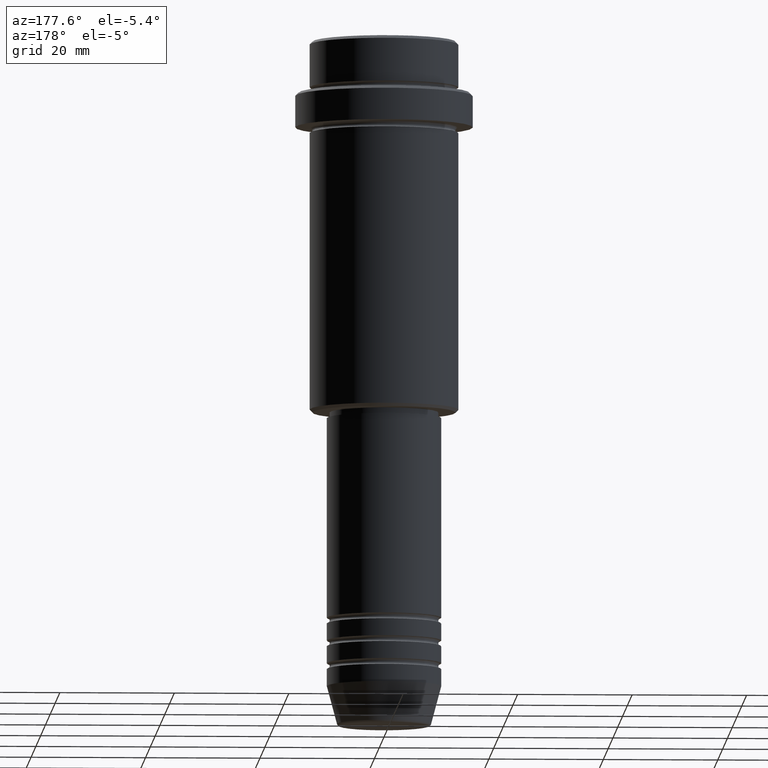
[diagram: clean part render]
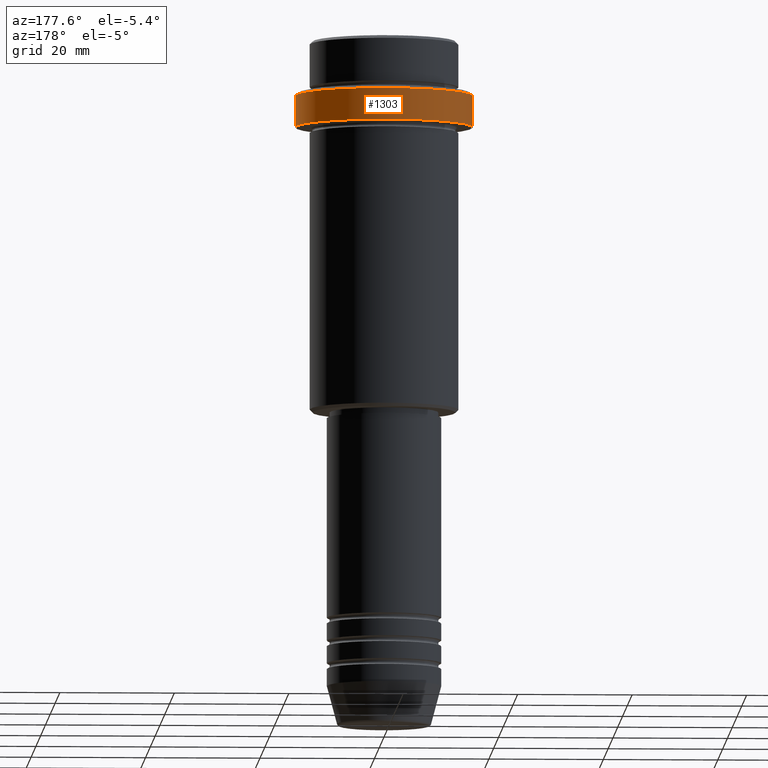
[diagram: same view with one face highlighted and labeled with its STEP entity id]
A machine part, auxiliary view. The second image highlights one B-rep face of the part: STEP entity #1303.
In plain terms, the highlighted cylindrical surface (partial cylindrical patch) has radius 15.5 mm, axis along (-0, -0, 1).
Its self-contained STEP definition (entity closure, byte-faithful):
#53 = EDGE_CURVE ( 'NONE', #793, #1355, #1281, .T. ) ;
#64 = VECTOR ( 'NONE', #1102, 1000.000000000000000 ) ;
#81 = VECTOR ( 'NONE', #292, 1000.000000000000000 ) ;
#220 = VERTEX_POINT ( 'NONE', #1080 ) ;
#224 = AXIS2_PLACEMENT_3D ( 'NONE', #280, #289, #600 ) ;
#233 = ORIENTED_EDGE ( 'NONE', *, *, #568, .T. ) ;
#261 = DIRECTION ( 'NONE',  ( 1.000000000000000000, 0.000000000000000000, 0.000000000000000000 ) ) ;
#280 = CARTESIAN_POINT ( 'NONE',  ( 0.000000000000000000, 0.000000000000000000, -9.499999999999998224 ) ) ;
#289 = DIRECTION ( 'NONE',  ( 0.000000000000000000, 0.000000000000000000, -1.000000000000000000 ) ) ;
#292 = DIRECTION ( 'NONE',  ( -0.000000000000000000, -0.000000000000000000, 1.000000000000000000 ) ) ;
#371 = DIRECTION ( 'NONE',  ( -0.000000000000000000, -0.000000000000000000, 1.000000000000000000 ) ) ;
#403 = CIRCLE ( 'NONE', #224, 15.50000000000000000 ) ;
#410 = VERTEX_POINT ( 'NONE', #562 ) ;
#476 = CYLINDRICAL_SURFACE ( 'NONE', #996, 15.50000000000000000 ) ;
#562 = CARTESIAN_POINT ( 'NONE',  ( 15.50000000000000000, 0.000000000000000000, -9.499999999999998224 ) ) ;
#568 = EDGE_CURVE ( 'NONE', #1355, #410, #403, .T. ) ;
#577 = CARTESIAN_POINT ( 'NONE',  ( -15.50000000000000000, 1.898202538678397557E-15, -15.00000000000000000 ) ) ;
#600 = DIRECTION ( 'NONE',  ( 1.000000000000000000, 0.000000000000000000, 0.000000000000000000 ) ) ;
#636 = AXIS2_PLACEMENT_3D ( 'NONE', #1036, #1027, #1260 ) ;
#736 = CARTESIAN_POINT ( 'NONE',  ( -15.50000000000000000, 1.898202538678397557E-15, 0.000000000000000000 ) ) ;
#777 = LINE ( 'NONE', #1323, #64 ) ;
#793 = VERTEX_POINT ( 'NONE', #577 ) ;
#831 = CARTESIAN_POINT ( 'NONE',  ( -15.50000000000000000, 1.898202538678397557E-15, -9.499999999999998224 ) ) ;
#867 = ORIENTED_EDGE ( 'NONE', *, *, #1335, .T. ) ;
#881 = FACE_OUTER_BOUND ( 'NONE', #1218, .T. ) ;
#903 = EDGE_CURVE ( 'NONE', #220, #410, #777, .T. ) ;
#908 = CARTESIAN_POINT ( 'NONE',  ( 0.000000000000000000, 0.000000000000000000, 0.000000000000000000 ) ) ;
#910 = CIRCLE ( 'NONE', #636, 15.50000000000000000 ) ;
#996 = AXIS2_PLACEMENT_3D ( 'NONE', #908, #371, #261 ) ;
#1027 = DIRECTION ( 'NONE',  ( -0.000000000000000000, -0.000000000000000000, 1.000000000000000000 ) ) ;
#1036 = CARTESIAN_POINT ( 'NONE',  ( 0.000000000000000000, 0.000000000000000000, -15.00000000000000000 ) ) ;
#1080 = CARTESIAN_POINT ( 'NONE',  ( 15.50000000000000000, 0.000000000000000000, -15.00000000000000000 ) ) ;
#1102 = DIRECTION ( 'NONE',  ( -0.000000000000000000, -0.000000000000000000, 1.000000000000000000 ) ) ;
#1218 = EDGE_LOOP ( 'NONE', ( #867, #1311, #233, #1365 ) ) ;
#1260 = DIRECTION ( 'NONE',  ( 1.000000000000000000, 0.000000000000000000, 0.000000000000000000 ) ) ;
#1281 = LINE ( 'NONE', #736, #81 ) ;
#1303 = ADVANCED_FACE ( 'NONE', ( #881 ), #476, .T. ) ;
#1311 = ORIENTED_EDGE ( 'NONE', *, *, #53, .T. ) ;
#1323 = CARTESIAN_POINT ( 'NONE',  ( 15.50000000000000000, 0.000000000000000000, 0.000000000000000000 ) ) ;
#1335 = EDGE_CURVE ( 'NONE', #220, #793, #910, .T. ) ;
#1355 = VERTEX_POINT ( 'NONE', #831 ) ;
#1365 = ORIENTED_EDGE ( 'NONE', *, *, #903, .F. ) ;